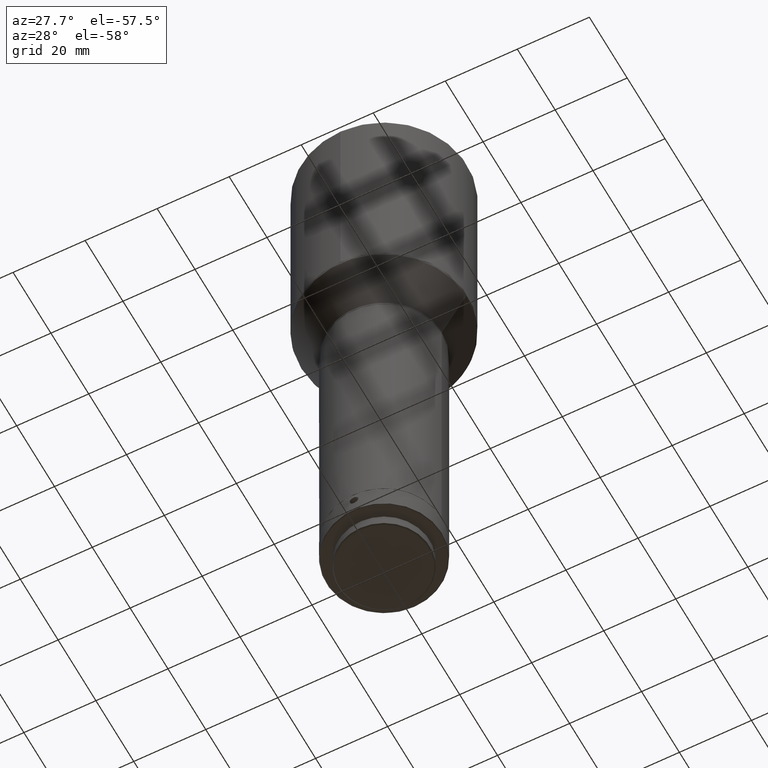
[diagram: clean part render]
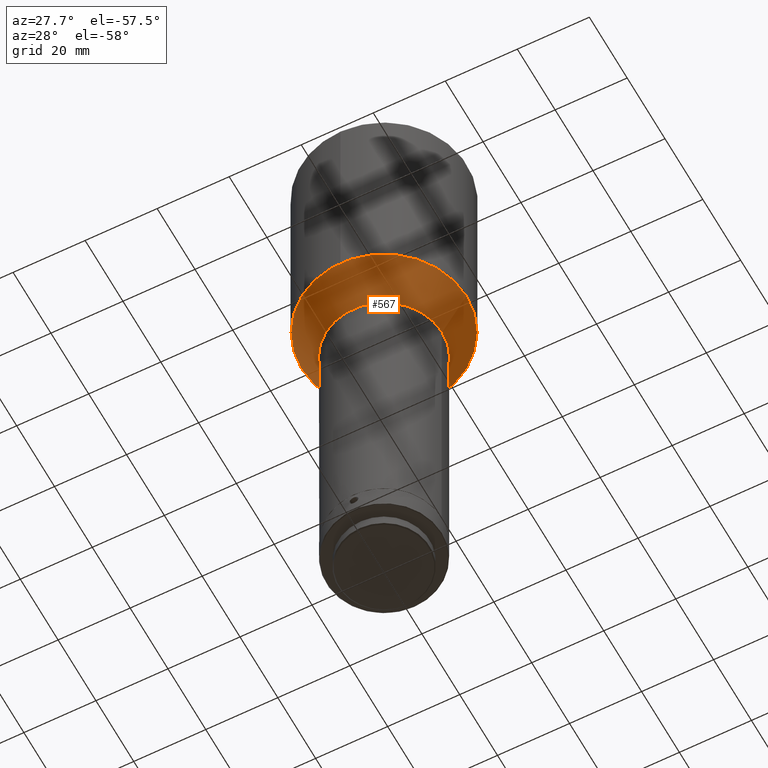
[diagram: same view with one face highlighted and labeled with its STEP entity id]
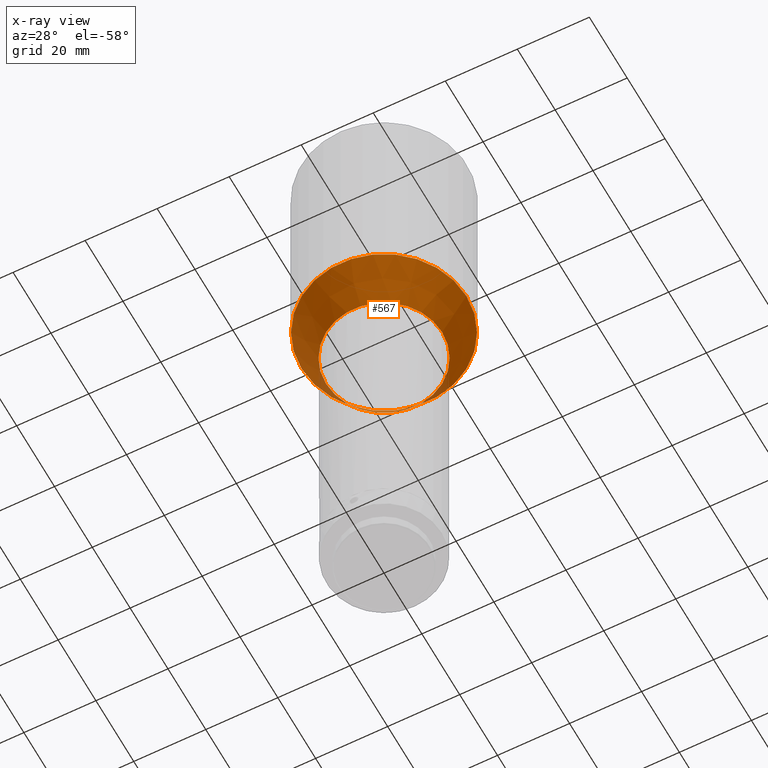
[diagram: x-ray of the same camera — body ghosted, the highlighted face saturated]
A machine part, auxiliary view. The second image highlights one B-rep face of the part: STEP entity #567.
The next image is the same camera in x-ray: the body ghosted, the highlighted face saturated — about 4% of this face is hidden behind the body in this view.
In plain terms, the highlighted conical surface has half-angle 30 deg.
Its self-contained STEP definition (entity closure, byte-faithful):
#22 = EDGE_CURVE ( 'NONE', #713, #713, #606, .T. ) ;
#91 = DIRECTION ( 'NONE',  ( 1.000000000000000000, 0.000000000000000000, 0.000000000000000000 ) ) ;
#108 = DIRECTION ( 'NONE',  ( 1.000000000000000000, 4.163336342344340108E-17, 0.000000000000000000 ) ) ;
#132 = DIRECTION ( 'NONE',  ( 4.930380657631324879E-32, 1.387225799431353182E-18, 1.000000000000000000 ) ) ;
#181 = CARTESIAN_POINT ( 'NONE',  ( 1.144917494144692682E-13, -1.607540913349427910E-14, -1010.232050807567930 ) ) ;
#221 = CARTESIAN_POINT ( 'NONE',  ( 16.13397459621563712, -1.541987291089465475E-14, -1021.892304845412468 ) ) ;
#291 = EDGE_CURVE ( 'NONE', #375, #375, #585, .T. ) ;
#375 = VERTEX_POINT ( 'NONE', #875 ) ;
#417 = CARTESIAN_POINT ( 'NONE',  ( 1.140131789119417168E-13, -1.607540913349428225E-14, -1010.232050807567930 ) ) ;
#453 = AXIS2_PLACEMENT_3D ( 'NONE', #624, #132, #108 ) ;
#567 = ADVANCED_FACE ( 'NONE', ( #592, #1071 ), #805, .T. ) ;
#585 = CIRCLE ( 'NONE', #1011, 22.86602540378448012 ) ;
#592 = FACE_OUTER_BOUND ( 'NONE', #680, .T. ) ;
#606 = CIRCLE ( 'NONE', #453, 16.13397459621552343 ) ;
#610 = EDGE_LOOP ( 'NONE', ( #1025 ) ) ;
#624 = CARTESIAN_POINT ( 'NONE',  ( 1.140131789119417168E-13, -1.609158453872349943E-14, -1021.892304845412468 ) ) ;
#673 = DIRECTION ( 'NONE',  ( -1.000000000000000000, -4.163336342344333945E-17, 0.000000000000000000 ) ) ;
#680 = EDGE_LOOP ( 'NONE', ( #965 ) ) ;
#705 = AXIS2_PLACEMENT_3D ( 'NONE', #181, #755, #91 ) ;
#713 = VERTEX_POINT ( 'NONE', #221 ) ;
#745 = DIRECTION ( 'NONE',  ( 4.930380657631324879E-32, 1.387225799431353182E-18, 1.000000000000000000 ) ) ;
#755 = DIRECTION ( 'NONE',  ( 0.000000000000000000, 0.000000000000000000, 1.000000000000000000 ) ) ;
#805 = CONICAL_SURFACE ( 'NONE', #705, 22.86602540378450499, 0.5235987755982999259 ) ;
#875 = CARTESIAN_POINT ( 'NONE',  ( -22.86602540378436643, -1.702739867917972901E-14, -1010.232050807567930 ) ) ;
#965 = ORIENTED_EDGE ( 'NONE', *, *, #291, .F. ) ;
#1011 = AXIS2_PLACEMENT_3D ( 'NONE', #417, #745, #673 ) ;
#1025 = ORIENTED_EDGE ( 'NONE', *, *, #22, .T. ) ;
#1071 = FACE_BOUND ( 'NONE', #610, .T. ) ;